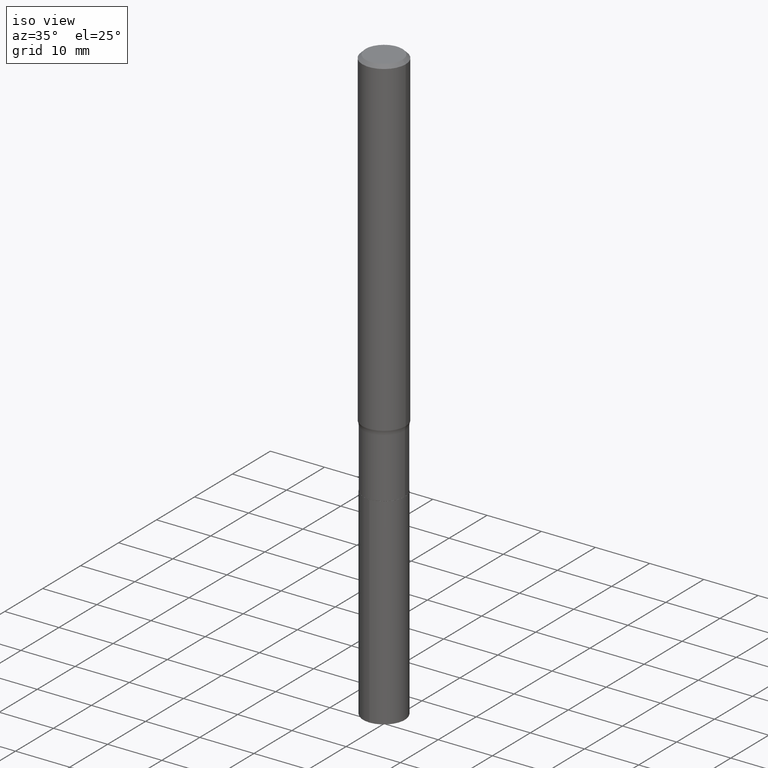
[diagram: clean part render]
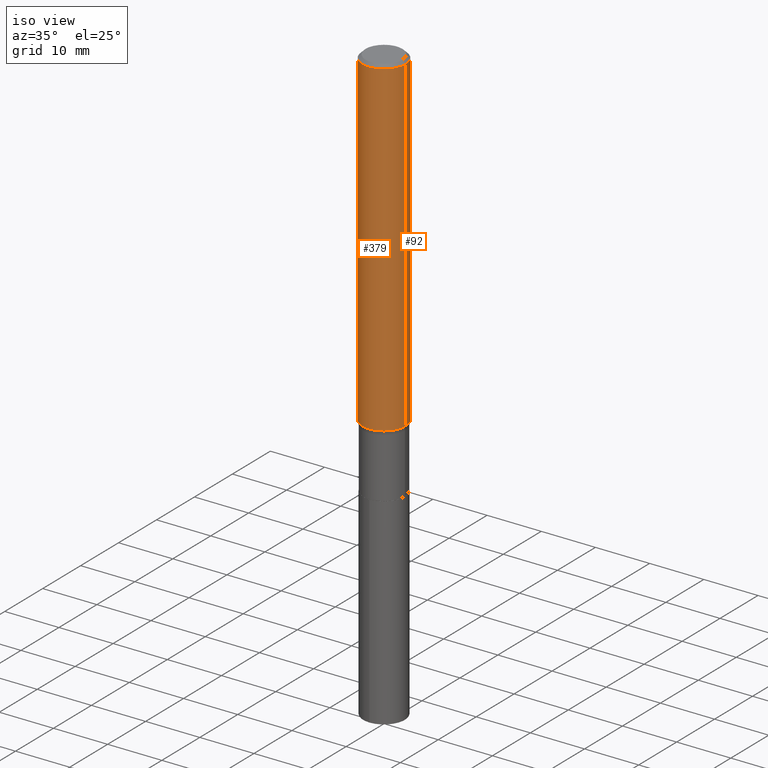
[diagram: same view with one multi-face feature highlighted, each face labeled with its STEP entity id]
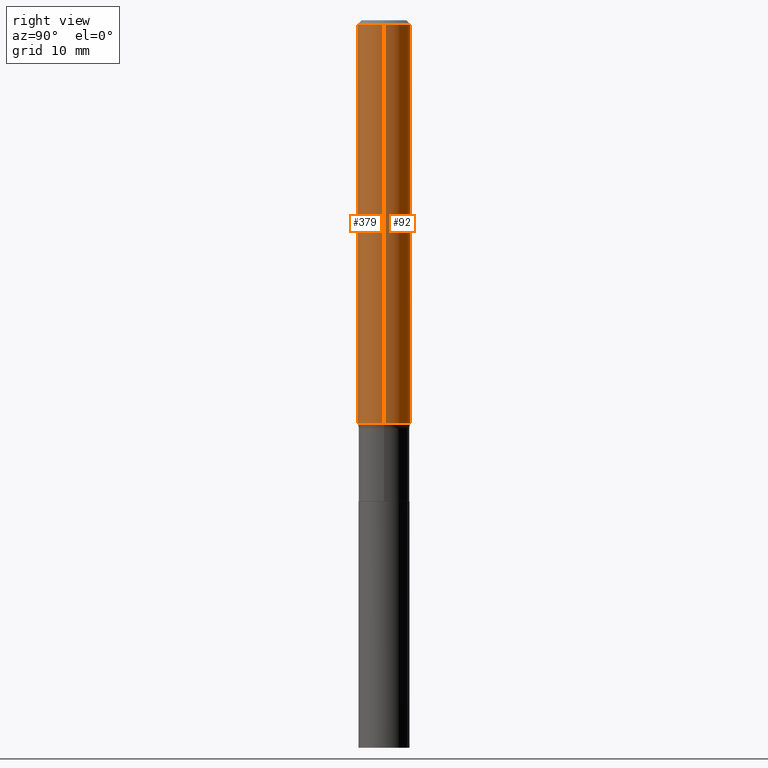
[diagram: same view with one multi-face feature highlighted, each face labeled with its STEP entity id]
A machine part, iso view. The highlighted faces form ONE feature: a constant-radius fillet chain: 2 tangent blend faces with common blend radius 4.0005 mm. The faces share edges in the B-rep.
A second angle (right view) of the same feature is appended — it is thin or edge-on in the first view.
Their STEP definitions:
[1] entity #379 (Cylinder):
#16 = CARTESIAN_POINT ( 'NONE',  ( -0.1575000000000001399, 1.119104808822158787E-15, -7.747322767151482590E-30 ) ) ;
#25 = AXIS2_PLACEMENT_3D ( 'NONE', #182, #231, #151 ) ;
#40 = AXIS2_PLACEMENT_3D ( 'NONE', #275, #204, #266 ) ;
#60 = ORIENTED_EDGE ( 'NONE', *, *, #443, .T. ) ;
#83 = DIRECTION ( 'NONE',  ( -2.445468806185136877E-29, 3.491481338843145188E-15, 1.000000000000000000 ) ) ;
#87 = CARTESIAN_POINT ( 'NONE',  ( 0.1575000000000002232, -9.479108712492933535E-15, -2.399924638730478677 ) ) ;
#88 = VECTOR ( 'NONE', #296, 39.37007874015748143 ) ;
#96 = LINE ( 'NONE', #16, #310 ) ;
#102 = EDGE_CURVE ( 'NONE', #245, #253, #314, .T. ) ;
#134 = DIRECTION ( 'NONE',  ( 1.000000000000000000, -6.982962677686268288E-15, 0.000000000000000000 ) ) ;
#146 = EDGE_CURVE ( 'NONE', #274, #245, #96, .T. ) ;
#151 = DIRECTION ( 'NONE',  ( 1.000000000000000000, -6.982962677686265922E-15, 4.876176775795935232E-29 ) ) ;
#173 = EDGE_LOOP ( 'NONE', ( #258, #461, #60, #259 ) ) ;
#182 = CARTESIAN_POINT ( 'NONE',  ( 0.000000000000000000, 0.000000000000000000, 0.000000000000000000 ) ) ;
#204 = DIRECTION ( 'NONE',  ( -2.445468806185136597E-29, 3.491481338843145583E-15, 1.000000000000000000 ) ) ;
#217 = VERTEX_POINT ( 'NONE', #87 ) ;
#231 = DIRECTION ( 'NONE',  ( -2.445468806185136597E-29, 3.491481338843145583E-15, 1.000000000000000000 ) ) ;
#245 = VERTEX_POINT ( 'NONE', #280 ) ;
#246 = CARTESIAN_POINT ( 'NONE',  ( 5.868940841210518645E-29, -8.379292090757343689E-15, -2.399924638730478677 ) ) ;
#253 = VERTEX_POINT ( 'NONE', #350 ) ;
#257 = FACE_OUTER_BOUND ( 'NONE', #173, .T. ) ;
#258 = ORIENTED_EDGE ( 'NONE', *, *, #146, .F. ) ;
#259 = ORIENTED_EDGE ( 'NONE', *, *, #102, .F. ) ;
#264 = EDGE_CURVE ( 'NONE', #274, #217, #374, .T. ) ;
#266 = DIRECTION ( 'NONE',  ( 1.000000000000000000, -6.982962677686265922E-15, 0.000000000000000000 ) ) ;
#274 = VERTEX_POINT ( 'NONE', #467 ) ;
#275 = CARTESIAN_POINT ( 'NONE',  ( 5.777420054612421104E-31, -8.248624663016981537E-17, -0.02362500000000014241 ) ) ;
#280 = CARTESIAN_POINT ( 'NONE',  ( -0.1575000000000000011, -3.111784359871596572E-15, -0.02362500000000014241 ) ) ;
#296 = DIRECTION ( 'NONE',  ( -2.445468806185136877E-29, 3.491481338843145188E-15, 1.000000000000000000 ) ) ;
#310 = VECTOR ( 'NONE', #83, 39.37007874015748143 ) ;
#314 = CIRCLE ( 'NONE', #40, 0.1575000000000000011 ) ;
#330 = CARTESIAN_POINT ( 'NONE',  ( 0.1575000000000001399, -1.099816621735587875E-15, 7.679978421878605039E-30 ) ) ;
#350 = CARTESIAN_POINT ( 'NONE',  ( 0.1575000000000000011, -1.182302868365756679E-15, -0.02362500000000014241 ) ) ;
#366 = LINE ( 'NONE', #330, #88 ) ;
#374 = CIRCLE ( 'NONE', #405, 0.1575000000000002787 ) ;
#379 = ADVANCED_FACE ( 'NONE', ( #257 ), #399, .T. ) ;
#399 = CYLINDRICAL_SURFACE ( 'NONE', #25, 0.1575000000000001399 ) ;
#405 = AXIS2_PLACEMENT_3D ( 'NONE', #246, #462, #134 ) ;
#443 = EDGE_CURVE ( 'NONE', #217, #253, #366, .T. ) ;
#461 = ORIENTED_EDGE ( 'NONE', *, *, #264, .T. ) ;
#462 = DIRECTION ( 'NONE',  ( -2.445468806185136597E-29, 3.491481338843145583E-15, 1.000000000000000000 ) ) ;
#467 = CARTESIAN_POINT ( 'NONE',  ( -0.1575000000000002232, -7.260187281935184507E-15, -2.399924638730478677 ) ) ;
[2] entity #92 (Cylinder):
#14 = DIRECTION ( 'NONE',  ( 1.000000000000000000, -6.982962677686268288E-15, 0.000000000000000000 ) ) ;
#16 = CARTESIAN_POINT ( 'NONE',  ( -0.1575000000000001399, 1.119104808822158787E-15, -7.747322767151482590E-30 ) ) ;
#23 = EDGE_CURVE ( 'NONE', #253, #245, #345, .T. ) ;
#49 = CIRCLE ( 'NONE', #103, 0.1575000000000002787 ) ;
#61 = FACE_OUTER_BOUND ( 'NONE', #427, .T. ) ;
#72 = ORIENTED_EDGE ( 'NONE', *, *, #23, .F. ) ;
#83 = DIRECTION ( 'NONE',  ( -2.445468806185136877E-29, 3.491481338843145188E-15, 1.000000000000000000 ) ) ;
#87 = CARTESIAN_POINT ( 'NONE',  ( 0.1575000000000002232, -9.479108712492933535E-15, -2.399924638730478677 ) ) ;
#88 = VECTOR ( 'NONE', #296, 39.37007874015748143 ) ;
#92 = ADVANCED_FACE ( 'NONE', ( #61 ), #121, .T. ) ;
#94 = ORIENTED_EDGE ( 'NONE', *, *, #146, .T. ) ;
#96 = LINE ( 'NONE', #16, #310 ) ;
#101 = AXIS2_PLACEMENT_3D ( 'NONE', #150, #331, #458 ) ;
#103 = AXIS2_PLACEMENT_3D ( 'NONE', #376, #192, #14 ) ;
#121 = CYLINDRICAL_SURFACE ( 'NONE', #101, 0.1575000000000001399 ) ;
#146 = EDGE_CURVE ( 'NONE', #274, #245, #96, .T. ) ;
#150 = CARTESIAN_POINT ( 'NONE',  ( 0.000000000000000000, 0.000000000000000000, 0.000000000000000000 ) ) ;
#187 = EDGE_CURVE ( 'NONE', #217, #274, #49, .T. ) ;
#192 = DIRECTION ( 'NONE',  ( -2.445468806185136597E-29, 3.491481338843145583E-15, 1.000000000000000000 ) ) ;
#217 = VERTEX_POINT ( 'NONE', #87 ) ;
#227 = DIRECTION ( 'NONE',  ( 1.000000000000000000, -6.982962677686265922E-15, 0.000000000000000000 ) ) ;
#245 = VERTEX_POINT ( 'NONE', #280 ) ;
#253 = VERTEX_POINT ( 'NONE', #350 ) ;
#274 = VERTEX_POINT ( 'NONE', #467 ) ;
#280 = CARTESIAN_POINT ( 'NONE',  ( -0.1575000000000000011, -3.111784359871596572E-15, -0.02362500000000014241 ) ) ;
#286 = CARTESIAN_POINT ( 'NONE',  ( 5.777420054612421104E-31, -8.248624663016981537E-17, -0.02362500000000014241 ) ) ;
#296 = DIRECTION ( 'NONE',  ( -2.445468806185136877E-29, 3.491481338843145188E-15, 1.000000000000000000 ) ) ;
#310 = VECTOR ( 'NONE', #83, 39.37007874015748143 ) ;
#330 = CARTESIAN_POINT ( 'NONE',  ( 0.1575000000000001399, -1.099816621735587875E-15, 7.679978421878605039E-30 ) ) ;
#331 = DIRECTION ( 'NONE',  ( -2.445468806185136597E-29, 3.491481338843145583E-15, 1.000000000000000000 ) ) ;
#345 = CIRCLE ( 'NONE', #418, 0.1575000000000000011 ) ;
#350 = CARTESIAN_POINT ( 'NONE',  ( 0.1575000000000000011, -1.182302868365756679E-15, -0.02362500000000014241 ) ) ;
#366 = LINE ( 'NONE', #330, #88 ) ;
#367 = ORIENTED_EDGE ( 'NONE', *, *, #187, .T. ) ;
#376 = CARTESIAN_POINT ( 'NONE',  ( 5.868940841210518645E-29, -8.379292090757343689E-15, -2.399924638730478677 ) ) ;
#398 = DIRECTION ( 'NONE',  ( -2.445468806185136597E-29, 3.491481338843145583E-15, 1.000000000000000000 ) ) ;
#418 = AXIS2_PLACEMENT_3D ( 'NONE', #286, #398, #227 ) ;
#427 = EDGE_LOOP ( 'NONE', ( #367, #94, #72, #463 ) ) ;
#443 = EDGE_CURVE ( 'NONE', #217, #253, #366, .T. ) ;
#458 = DIRECTION ( 'NONE',  ( 1.000000000000000000, -6.982962677686265922E-15, 4.876176775795935232E-29 ) ) ;
#463 = ORIENTED_EDGE ( 'NONE', *, *, #443, .F. ) ;
#467 = CARTESIAN_POINT ( 'NONE',  ( -0.1575000000000002232, -7.260187281935184507E-15, -2.399924638730478677 ) ) ;